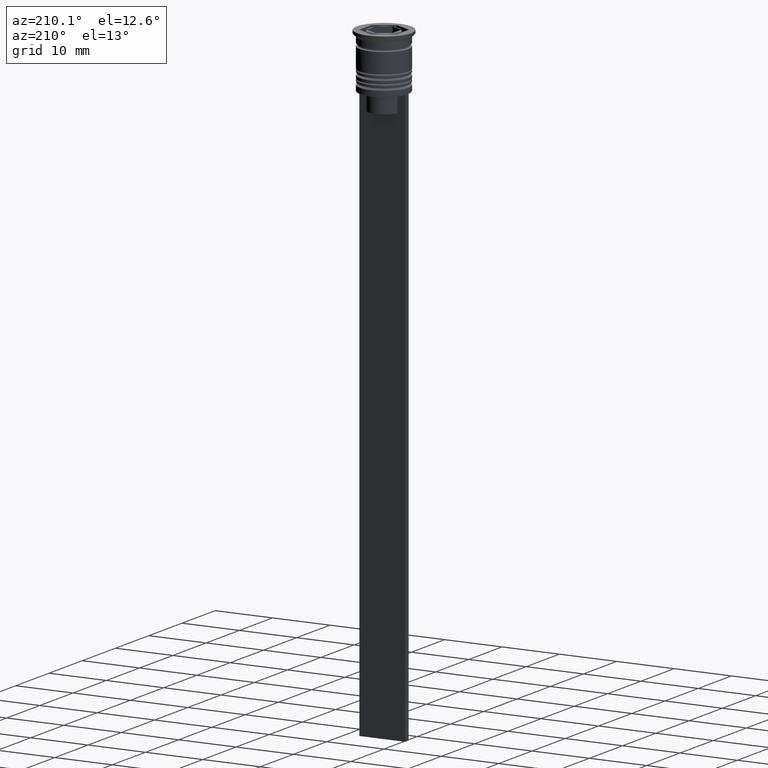
[diagram: clean part render]
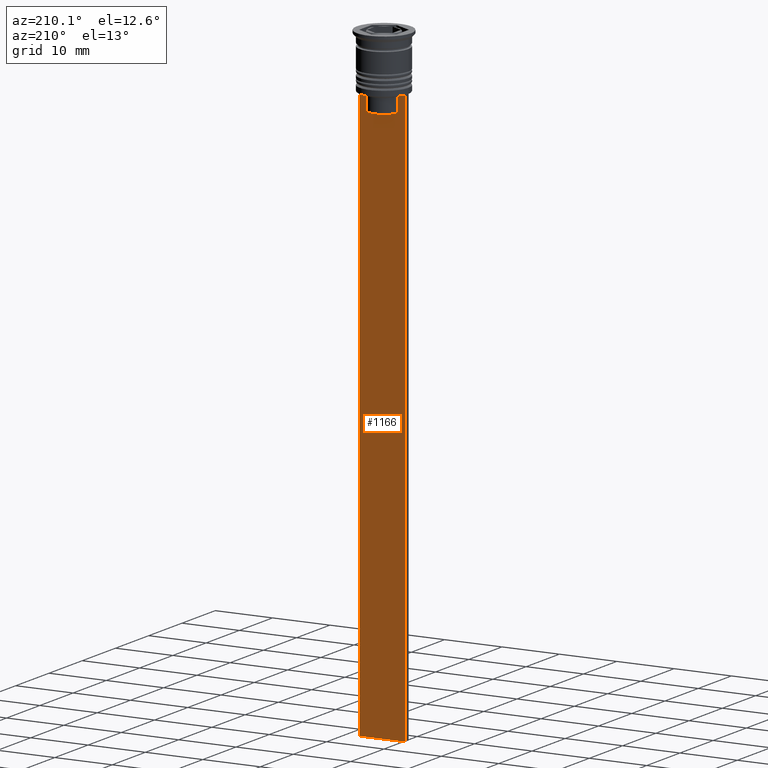
[diagram: same view with one face highlighted and labeled with its STEP entity id]
A machine part, auxiliary view. The second image highlights one B-rep face of the part: STEP entity #1166.
In plain terms, the highlighted planar face has unit normal (0, -1, -0).
Its self-contained STEP definition (entity closure, byte-faithful):
#8 = CARTESIAN_POINT ( 'NONE',  ( 4.000000000000005329, 0.4999999999999995559, -1.437742251701450202 ) ) ;
#12 = EDGE_CURVE ( 'NONE', #943, #1155, #987, .T. ) ;
#36 = CARTESIAN_POINT ( 'NONE',  ( -2.602402735934617350, 0.4999999999999995559, 0.000000000000000000 ) ) ;
#53 = LINE ( 'NONE', #1528, #1309 ) ;
#135 = ORIENTED_EDGE ( 'NONE', *, *, #548, .T. ) ;
#187 = EDGE_CURVE ( 'NONE', #1360, #576, #1396, .T. ) ;
#203 = ORIENTED_EDGE ( 'NONE', *, *, #187, .T. ) ;
#204 = PLANE ( 'NONE',  #875 ) ;
#217 = LINE ( 'NONE', #8, #1186 ) ;
#272 = CARTESIAN_POINT ( 'NONE',  ( -2.602402735934617350, 0.4999999999999995559, -10.00000000000000178 ) ) ;
#334 = EDGE_CURVE ( 'NONE', #464, #1360, #1945, .T. ) ;
#411 = DIRECTION ( 'NONE',  ( 1.000000000000000000, 0.000000000000000000, 0.000000000000000000 ) ) ;
#431 = CARTESIAN_POINT ( 'NONE',  ( -2.771866350855961780, 0.4999999999999995559, -9.833580160334840059 ) ) ;
#451 = CARTESIAN_POINT ( 'NONE',  ( 2.941045828809989438, 0.4999999999999995559, -9.666875663357577864 ) ) ;
#464 = VERTEX_POINT ( 'NONE', #1611 ) ;
#471 = ORIENTED_EDGE ( 'NONE', *, *, #2059, .T. ) ;
#534 = CARTESIAN_POINT ( 'NONE',  ( 3.110064308016796897, 0.4999999999999995559, -9.500000000000000000 ) ) ;
#548 = EDGE_CURVE ( 'NONE', #1369, #1155, #1794, .T. ) ;
#568 = ORIENTED_EDGE ( 'NONE', *, *, #590, .T. ) ;
#576 = VERTEX_POINT ( 'NONE', #1645 ) ;
#590 = EDGE_CURVE ( 'NONE', #617, #1732, #2157, .T. ) ;
#611 = CARTESIAN_POINT ( 'NONE',  ( 2.602402735934617350, 0.4999999999999995559, -10.00000000000000178 ) ) ;
#617 = VERTEX_POINT ( 'NONE', #2209 ) ;
#644 = VECTOR ( 'NONE', #411, 1000.000000000000000 ) ;
#653 = CARTESIAN_POINT ( 'NONE',  ( -3.110064308016796897, 0.4999999999999995559, -9.500000000000000000 ) ) ;
#658 = ORIENTED_EDGE ( 'NONE', *, *, #1327, .T. ) ;
#719 = EDGE_CURVE ( 'NONE', #576, #1369, #217, .T. ) ;
#724 = DIRECTION ( 'NONE',  ( 0.000000000000000000, 0.000000000000000000, -1.000000000000000000 ) ) ;
#725 = VECTOR ( 'NONE', #724, 1000.000000000000000 ) ;
#743 = ORIENTED_EDGE ( 'NONE', *, *, #1485, .T. ) ;
#829 = VECTOR ( 'NONE', #1209, 1000.000000000000000 ) ;
#875 = AXIS2_PLACEMENT_3D ( 'NONE', #1499, #2100, #964 ) ;
#888 = ORIENTED_EDGE ( 'NONE', *, *, #2045, .T. ) ;
#943 = VERTEX_POINT ( 'NONE', #1275 ) ;
#955 = B_SPLINE_CURVE_WITH_KNOTS ( 'NONE', 3,
 ( #2258, #2284, #431, #2107 ),
 .UNSPECIFIED., .F., .F.,
 ( 4, 4 ),
 ( 0.005378271293598279809, 0.006090816219555997280 ),
 .UNSPECIFIED. ) ;
#964 = DIRECTION ( 'NONE',  ( 0.000000000000000000, 0.000000000000000000, -1.000000000000000000 ) ) ;
#987 = LINE ( 'NONE', #1728, #2140 ) ;
#1012 = DIRECTION ( 'NONE',  ( 0.000000000000000000, 0.000000000000000000, -1.000000000000000000 ) ) ;
#1038 = CARTESIAN_POINT ( 'NONE',  ( 4.000000000000005329, 0.4999999999999995559, -9.500000000000000000 ) ) ;
#1062 = DIRECTION ( 'NONE',  ( -0.000000000000000000, -0.000000000000000000, 1.000000000000000000 ) ) ;
#1143 = DIRECTION ( 'NONE',  ( 1.000000000000000000, 0.000000000000000000, 0.000000000000000000 ) ) ;
#1155 = VERTEX_POINT ( 'NONE', #2020 ) ;
#1166 = ADVANCED_FACE ( 'NONE', ( #1865 ), #204, .F. ) ;
#1186 = VECTOR ( 'NONE', #1513, 1000.000000000000000 ) ;
#1205 = CARTESIAN_POINT ( 'NONE',  ( 3.110064308016796897, 0.4999999999999995559, -9.500000000000000000 ) ) ;
#1207 = CARTESIAN_POINT ( 'NONE',  ( 2.602402735934617350, 0.4999999999999995559, -12.50000000000000000 ) ) ;
#1209 = DIRECTION ( 'NONE',  ( 1.000000000000000000, 0.000000000000000000, 0.000000000000000000 ) ) ;
#1250 = CARTESIAN_POINT ( 'NONE',  ( 4.000000000000005329, 0.4999999999999995559, -109.5000000000000000 ) ) ;
#1257 = CARTESIAN_POINT ( 'NONE',  ( 2.602402735934617350, 0.4999999999999995559, 0.000000000000000000 ) ) ;
#1275 = CARTESIAN_POINT ( 'NONE',  ( -3.999999999999994671, 0.4999999999999997780, -9.500000000000000000 ) ) ;
#1309 = VECTOR ( 'NONE', #1143, 1000.000000000000000 ) ;
#1327 = EDGE_CURVE ( 'NONE', #1732, #464, #1585, .T. ) ;
#1351 = CARTESIAN_POINT ( 'NONE',  ( 2.771864055700302476, 0.4999999999999995559, -9.833582414266677674 ) ) ;
#1360 = VERTEX_POINT ( 'NONE', #534 ) ;
#1369 = VERTEX_POINT ( 'NONE', #2364 ) ;
#1396 = LINE ( 'NONE', #1038, #829 ) ;
#1411 = ORIENTED_EDGE ( 'NONE', *, *, #334, .T. ) ;
#1481 = CARTESIAN_POINT ( 'NONE',  ( 0.000000000000000000, 0.4999999999999995559, -12.50000000000000000 ) ) ;
#1485 = EDGE_CURVE ( 'NONE', #2156, #617, #2203, .T. ) ;
#1499 = CARTESIAN_POINT ( 'NONE',  ( 4.000000000000005329, 0.4999999999999995559, -1.437742251701450202 ) ) ;
#1513 = DIRECTION ( 'NONE',  ( 0.000000000000000000, 0.000000000000000000, -1.000000000000000000 ) ) ;
#1528 = CARTESIAN_POINT ( 'NONE',  ( 4.000000000000005329, 0.4999999999999995559, -9.500000000000000000 ) ) ;
#1584 = VECTOR ( 'NONE', #2168, 1000.000000000000000 ) ;
#1585 = LINE ( 'NONE', #1257, #2186 ) ;
#1611 = CARTESIAN_POINT ( 'NONE',  ( 2.602402735934617350, 0.4999999999999995559, -10.00000000000000178 ) ) ;
#1645 = CARTESIAN_POINT ( 'NONE',  ( 4.000000000000005329, 0.4999999999999995559, -9.500000000000000000 ) ) ;
#1728 = CARTESIAN_POINT ( 'NONE',  ( -3.999999999999994671, 0.4999999999999995559, -1.437742251701450202 ) ) ;
#1732 = VERTEX_POINT ( 'NONE', #1207 ) ;
#1735 = ORIENTED_EDGE ( 'NONE', *, *, #12, .F. ) ;
#1767 = VERTEX_POINT ( 'NONE', #653 ) ;
#1794 = LINE ( 'NONE', #1250, #1584 ) ;
#1832 = ORIENTED_EDGE ( 'NONE', *, *, #719, .T. ) ;
#1865 = FACE_OUTER_BOUND ( 'NONE', #2013, .T. ) ;
#1945 = B_SPLINE_CURVE_WITH_KNOTS ( 'NONE', 3,
 ( #611, #1351, #451, #1205 ),
 .UNSPECIFIED., .F., .F.,
 ( 4, 4 ),
 ( 0.01295151922336847637, 0.01367164596165162602 ),
 .UNSPECIFIED. ) ;
#2013 = EDGE_LOOP ( 'NONE', ( #888, #471, #743, #568, #658, #1411, #203, #1832, #135, #1735 ) ) ;
#2020 = CARTESIAN_POINT ( 'NONE',  ( -3.999999999999994671, 0.4999999999999995559, -109.5000000000000000 ) ) ;
#2045 = EDGE_CURVE ( 'NONE', #943, #1767, #53, .T. ) ;
#2059 = EDGE_CURVE ( 'NONE', #1767, #2156, #955, .T. ) ;
#2100 = DIRECTION ( 'NONE',  ( 0.000000000000000000, -1.000000000000000000, -0.000000000000000000 ) ) ;
#2107 = CARTESIAN_POINT ( 'NONE',  ( -2.602402735934617350, 0.4999999999999995559, -10.00000000000000178 ) ) ;
#2140 = VECTOR ( 'NONE', #1012, 1000.000000000000000 ) ;
#2156 = VERTEX_POINT ( 'NONE', #272 ) ;
#2157 = LINE ( 'NONE', #1481, #644 ) ;
#2168 = DIRECTION ( 'NONE',  ( -1.000000000000000000, 0.000000000000000000, 0.000000000000000000 ) ) ;
#2186 = VECTOR ( 'NONE', #1062, 1000.000000000000000 ) ;
#2203 = LINE ( 'NONE', #36, #725 ) ;
#2209 = CARTESIAN_POINT ( 'NONE',  ( -2.602402735934617350, 0.4999999999999995559, -12.50000000000000000 ) ) ;
#2258 = CARTESIAN_POINT ( 'NONE',  ( -3.110064308016796897, 0.4999999999999995559, -9.500000000000000000 ) ) ;
#2284 = CARTESIAN_POINT ( 'NONE',  ( -2.941047749529105193, 0.4999999999999995559, -9.666873766989334982 ) ) ;
#2364 = CARTESIAN_POINT ( 'NONE',  ( 4.000000000000005329, 0.4999999999999995559, -109.5000000000000000 ) ) ;